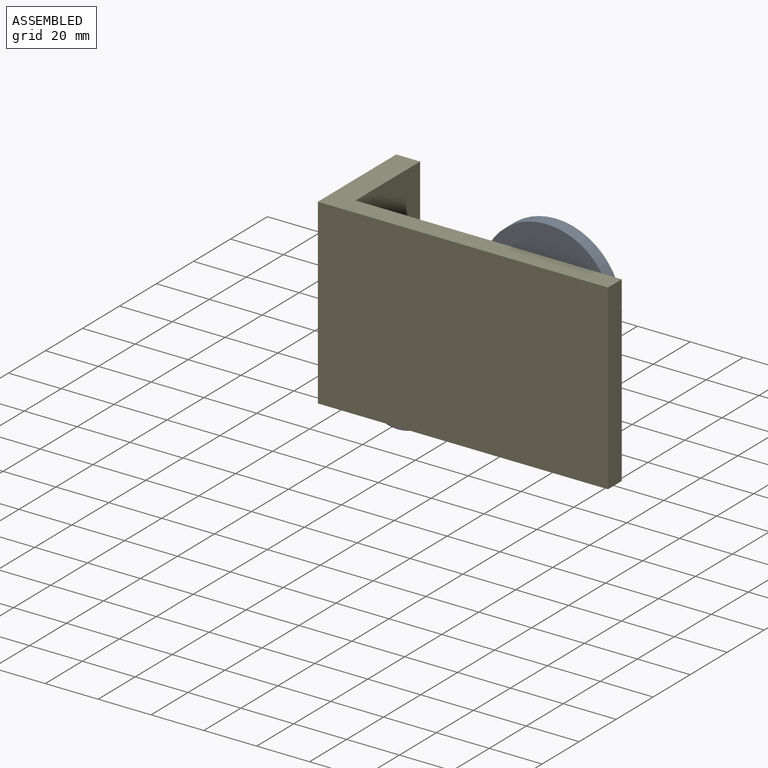
[diagram: assembled view]
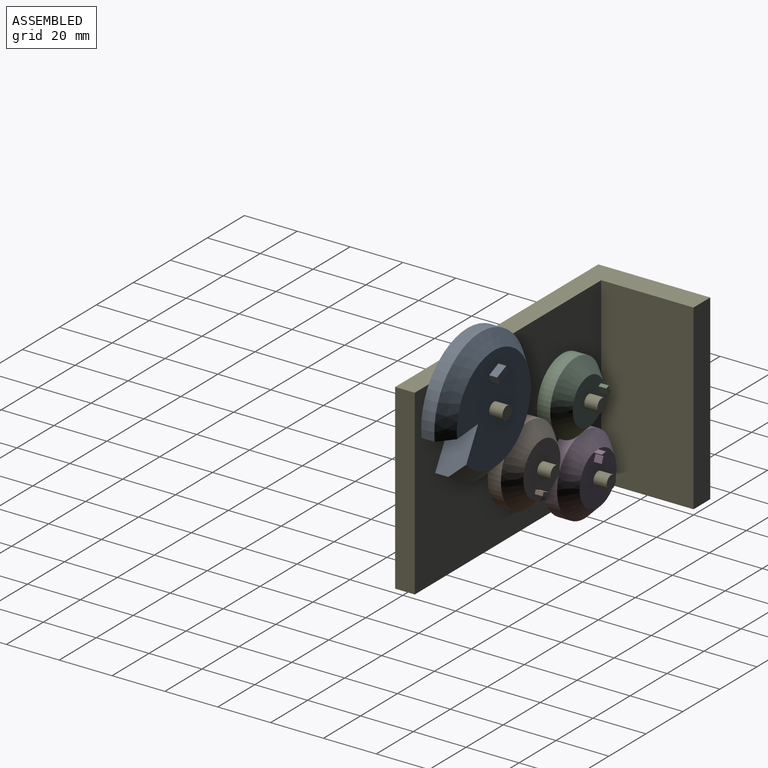
[diagram: assembled view, second angle]
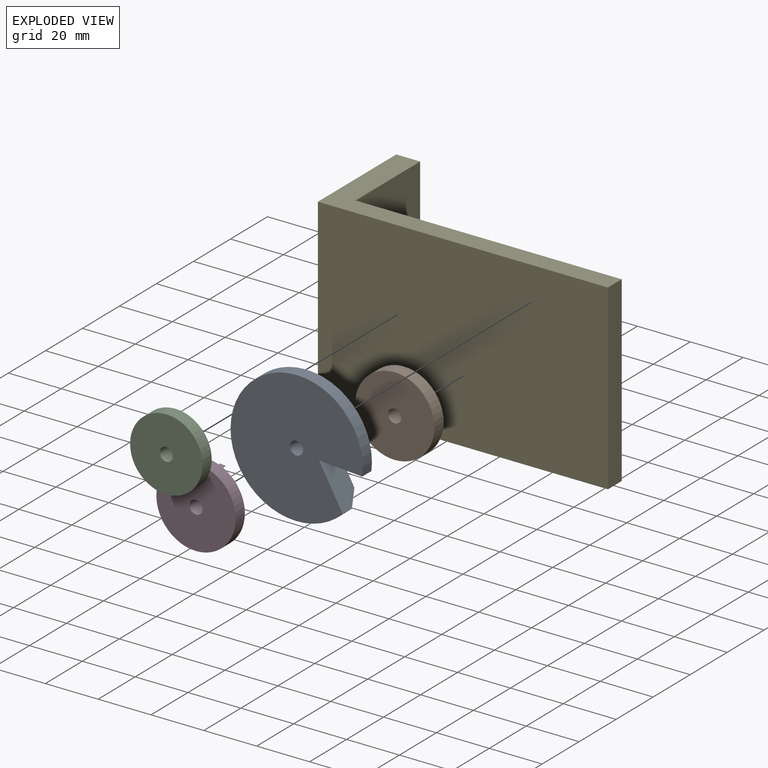
[diagram: exploded view]
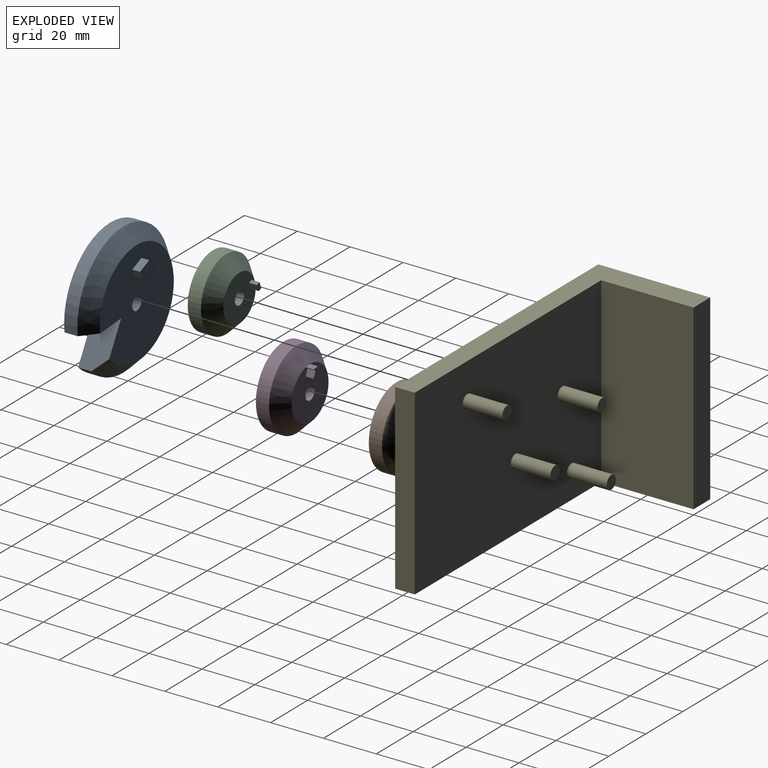
[diagram: exploded view, second angle]
ASSEMBLY  parts=5 mates=4
PART A: 12 faces, bbox 50x13x49.2 mm
  f0: plane 40x39.32mm, normal (0,1,0), area 1152.4mm2, adj f3,f4,f5,f6,f7,f8,f10,f11
  f1: cylinder r=25mm len=50mm, axis (0,-1,0), area 701.1mm2, adj f2,f3,f10,f11
  f2: plane 50x49.06mm, normal (0,-1,0), area 1802.8mm2, adj f1,f4,f10,f11
  f3: cone r=20mm half-angle=45deg, axis (0,-1,0), area 898.1mm2, adj f0,f1,f10,f11
  f4: cylinder r=2.5mm len=10mm, axis (0,-1,0), area 157.1mm2, adj f0,f2
  f5: plane 5.42x3mm, normal (1,0,0), area 16.2mm2, adj f0,f6,f8,f9
  f6: plane 3x2.85mm, normal (0,0,-1), area 8.6mm2, adj f0,f5,f7,f9
  f7: plane 5.42x3mm, normal (-1,0,0), area 16.2mm2, adj f0,f6,f8,f9
  f8: plane 3x2.85mm, normal (0,0,1), area 8.6mm2, adj f0,f5,f7,f9
  f9: plane 5.42x2.85mm, normal (0,1,0), area 15.4mm2, adj f5,f6,f7,f8
  f10: plane 15.55x10.03mm, normal (0.95,0,0.32), area 151.2mm2, adj f0,f1,f2,f3,f11
  f11: plane 14.48x11.29mm, normal (-0.79,0,0.62), area 170.6mm2, adj f0,f1,f2,f3,f10
PART B: 10 faces, bbox 30x13x30 mm
  f0: plane 20x20mm, normal (0,1,0), area 290.3mm2, adj f1,f4,f5,f6,f7,f8
  f1: cylinder r=2.5mm len=10mm, axis (0,-1,0), area 157.1mm2, adj f0,f3
  f2: cylinder r=15mm len=30mm, axis (0,-1,0), area 471.2mm2, adj f3,f4
  f3: plane 30x30mm, normal (0,-1,0), area 687.2mm2, adj f1,f2
  f4: cone r=10mm half-angle=45deg, axis (0,-1,0), area 555.4mm2, adj f0,f2
  f5: plane 3x1.41mm, normal (0,0,-1), area 4.2mm2, adj f0,f6,f8,f9
  f6: plane 3x2.97mm, normal (-1,0,0), area 8.9mm2, adj f0,f5,f7,f9
  f7: plane 3x1.41mm, normal (0,0,1), area 4.2mm2, adj f0,f6,f8,f9
  f8: plane 3x2.97mm, normal (1,0,0), area 8.9mm2, adj f0,f5,f7,f9
  f9: plane 2.97x1.41mm, normal (0,1,0), area 4.2mm2, adj f5,f6,f7,f8
PART C: 10 faces, bbox 27.4x13x27.4 mm
  f0: plane 17.4x17.4mm, normal (0,1,0), area 214.6mm2, adj f1,f4,f5,f6,f7,f8
  f1: cylinder r=2.5mm len=10mm, axis (0,-1,0), area 157.1mm2, adj f0,f3
  f2: cylinder r=13.7mm len=27.4mm, axis (0,-1,0), area 430.5mm2, adj f3,f4
  f3: plane 27.4x27.4mm, normal (0,-1,0), area 570.2mm2, adj f1,f2
  f4: cone r=8.7mm half-angle=45deg, axis (0,-1,0), area 497.7mm2, adj f0,f2
  f5: plane 3x2.62mm, normal (0,0,-1), area 7.9mm2, adj f0,f6,f8,f9
  f6: plane 3x1.41mm, normal (-1,0,0), area 4.2mm2, adj f0,f5,f7,f9
  f7: plane 3x2.62mm, normal (0,0,1), area 7.9mm2, adj f0,f6,f8,f9
  f8: plane 3x1.41mm, normal (1,0,0), area 4.2mm2, adj f0,f5,f7,f9
  f9: plane 2.62x1.41mm, normal (0,1,0), area 3.7mm2, adj f5,f6,f7,f8
PART D: 14 faces, bbox 30x13x30 mm
  f0: plane 20x20mm, normal (0,1,0), area 286.9mm2, adj f2,f5,f6,f7,f8,f9,f10,f12
  f1: plane 1.99x1.12mm, normal (0,1,0), area 0.1mm2, adj f5,f11
  f2: cylinder r=2.5mm len=10mm, axis (0,-1,0), area 157.1mm2, adj f0,f4
  f3: cylinder r=15mm len=30mm, axis (0,-1,0), area 471.2mm2, adj f4,f5
  f4: plane 30x30mm, normal (0,-1,0), area 687.2mm2, adj f2,f3
  f5: cone r=10mm half-angle=45deg, axis (0,-1,0), area 555.4mm2, adj f0,f1,f3
  f6: plane 3x2.58mm, normal (0,0,-1), area 7.8mm2, adj f0,f7,f12,f13
  f7: plane 3x1.65mm, normal (-1,0,0), area 5mm2, adj f0,f6,f8,f13
  f8: plane 3x2.88mm, normal (0,0,1), area 8.6mm2, adj f0,f7,f9,f13
  f9: plane 3x1.86mm, normal (-0.99,0,-0.16), area 5.7mm2, adj f0,f8,f10,f13
  f10: plane 3x2.69mm, normal (0.88,0,0.48), area 9.2mm2, adj f0,f9,f11,f13
  f11: plane 3x1.99mm, normal (0.87,0,-0.49), area 6.9mm2, adj f1,f10,f12,f13
  f12: plane 3x1.16mm, normal (-0.96,0,-0.27), area 3.6mm2, adj f0,f6,f11,f13
  f13: plane 4.68x4.04mm, normal (0,1,0), area 7.5mm2, adj f6,f7,f8,f9,f10,f11,f12
PART E: 16 faces, bbox 109.8x42.4x69 mm
  f0: plane 69x42.36mm, normal (-1,0,0), area 2922.6mm2, adj f1,f4,f5,f6
  f1: plane 109.78x69mm, normal (0,-1,0), area 7575mm2, adj f0,f5,f6,f7
  f2: plane 100.75x69mm, normal (0,1,0), area 6872.9mm2, adj f3,f5,f6,f7,f8,f10,f12,f14
  f3: plane 69x34.94mm, normal (1,0,0), area 2410.6mm2, adj f2,f4,f5,f6
  f4: plane 69x9.04mm, normal (0,1,0), area 623.6mm2, adj f0,f3,f5,f6
  f5: plane 109.78x42.36mm, normal (0,0,1), area 1130.3mm2, adj f0,f1,f2,f3,f4,f7
  f6: plane 109.78x42.36mm, normal (0,0,-1), area 1130.3mm2, adj f0,f1,f2,f3,f4,f7
  f7: plane 69x7.42mm, normal (1,0,0), area 512mm2, adj f1,f2,f5,f6
  f8: cylinder r=2.5mm len=15mm, axis (0,-1,0), area 235.6mm2, adj f2,f9
  f9: plane 5x5mm, normal (0,1,0), area 19.6mm2, adj f8
  f10: cylinder r=2.5mm len=15mm, axis (0,-1,0), area 235.6mm2, adj f2,f11
  f11: plane 5x5mm, normal (0,1,0), area 19.6mm2, adj f10
  f12: cylinder r=2.5mm len=15mm, axis (0,-1,0), area 235.6mm2, adj f2,f13
  f13: plane 5x5mm, normal (0,1,0), area 19.6mm2, adj f12
  f14: cylinder r=2.5mm len=15mm, axis (0,-1,0), area 235.6mm2, adj f2,f15
  f15: plane 5x5mm, normal (0,1,0), area 19.6mm2, adj f14
PLACE A rot(axis=(0,1,0),112.9deg) t=(42.35,20.68,151.63)mm
PLACE B rot(axis=(0,-1,0),112.9deg) t=(80.04,20.68,-16.56)mm
PLACE C rot(axis=(0,1,0),112.9deg) t=(-13.34,20.68,80.72)mm
PLACE D rot(axis=(0,-1,0),112.9deg) t=(24.17,20.68,-9.2)mm
PLACE E t=(-19.78,20.68,-0.07)mm fixed
MATE revolute C.f1 <-> E.f10  axis (0,-1,0) through (10.22,31.55,38.19)mm
MATE revolute B.f1 <-> E.f12  axis (0,-1,0) through (35.59,31.55,24.77)mm
MATE revolute A.f1 <-> E.f14  axis (0,-1,0) through (61.57,31.55,55.19)mm
MATE revolute D.f2 <-> E.f8  axis (0,-1,0) through (5.22,31.55,9.93)mm
